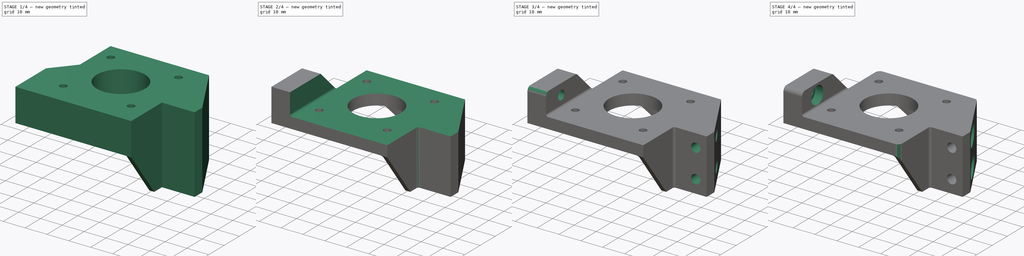
[diagram: build sequence overview — one tinted view per stage of 4, left to right]
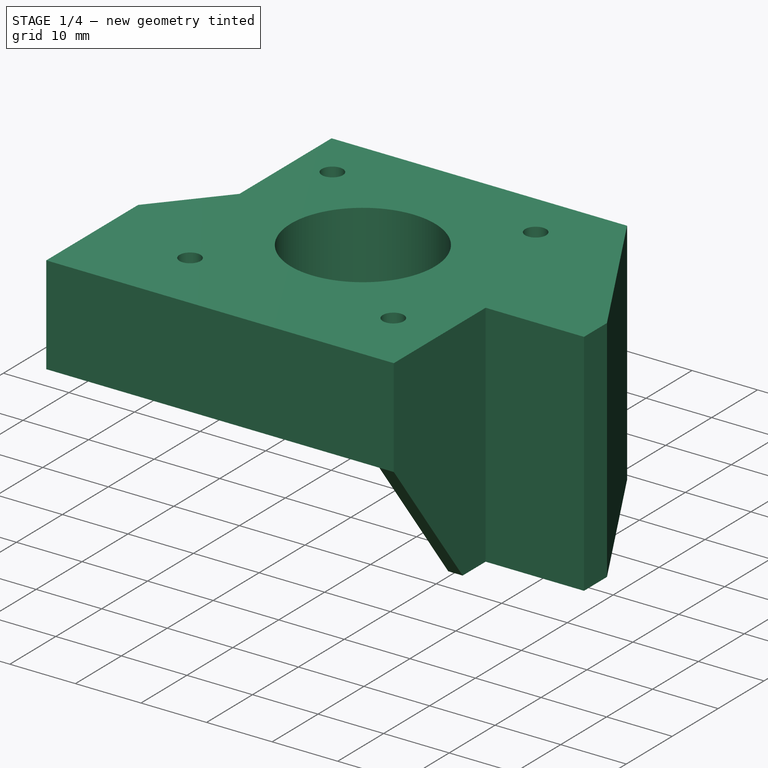
[diagram: stage 1 of 4 — iso view after this stage's code; geometry added in this stage tinted green]
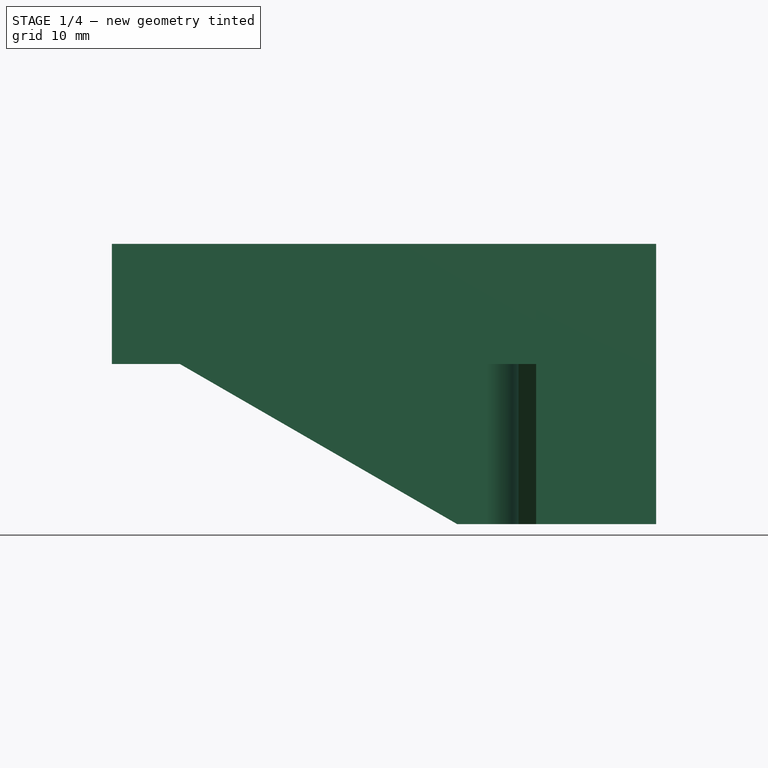
[diagram: stage 1 of 4 — front view after this stage's code; geometry added in this stage tinted green]
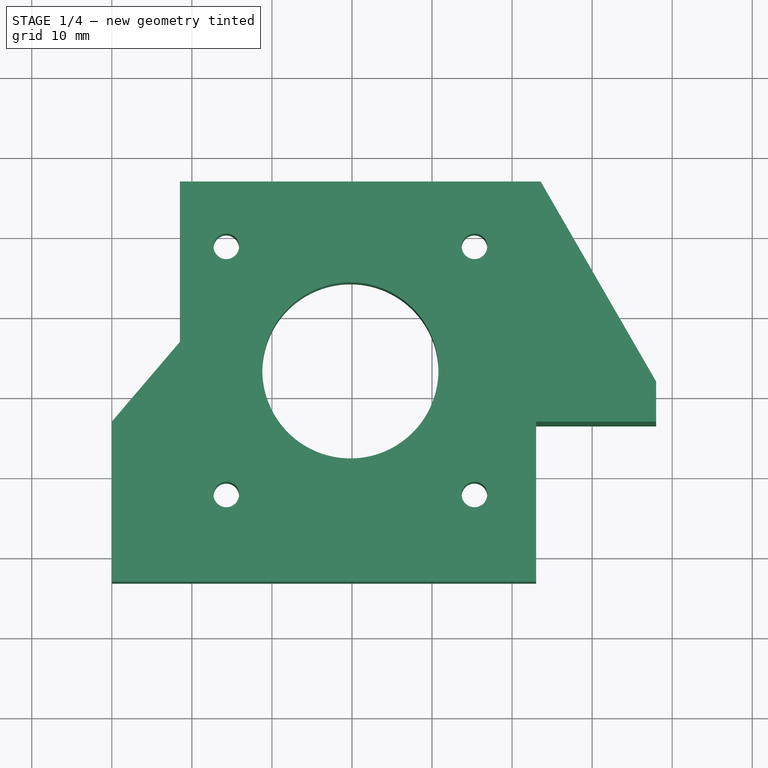
[diagram: stage 1 of 4 — top view after this stage's code; geometry added in this stage tinted green]
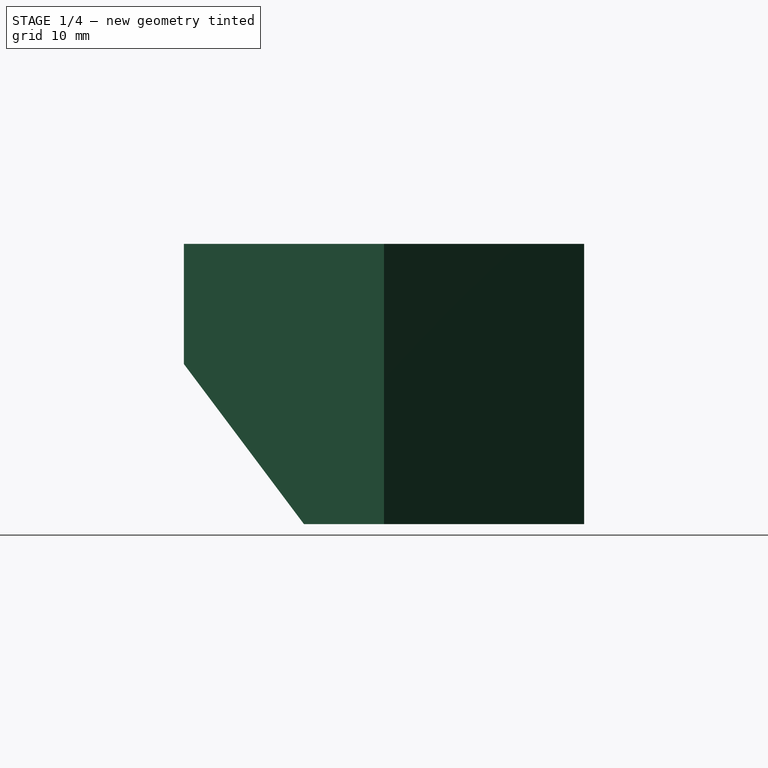
[diagram: stage 1 of 4 — right view after this stage's code; geometry added in this stage tinted green]
FCSTD DOCUMENT  (FreeCAD 0.17R5235 (Git shallow))
Label: C1030-1_motor_mount
License: CreativeCommons Attribution-ShareAlike
LicenseURL: http://creativecommons.org/licenses/by-sa/4.0/
objects: Sketcher::SketchObject×11, PartDesign::Pocket×9, PartDesign::Fillet×4, PartDesign::Pad×1, PartDesign::Body×1
note: 36 computed .brp shape members not serialized (recipe doc carries the construction recipe); baked Part::Feature solids carry a one-line shape summary decoded from their .brp

FEATURE [Sketcher::SketchObject] Sketch
  MapMode = 5
  Support = -> [XY_Plane]
  sketch-geometry (18):
    g0: Circle CenterX=-50.2 CenterY=-7.10282 CenterZ=0 NormalX=0 NormalY=0 NormalZ=1 AngleXU=0 Radius=6.35
    g1: Circle CenterX=0 CenterY=0 CenterZ=0 NormalX=0 NormalY=0 NormalZ=1 AngleXU=0 Radius=11.45
    g2: LineSegment StartX=-49.9473 StartY=-13.4478 StartZ=0 EndX=0.455582 EndY=-11.4409 EndZ=0
    g3: LineSegment [constr] StartX=-50.2 StartY=-7.10282 StartZ=0 EndX=0 EndY=0 EndZ=0
    g4: LineSegment StartX=-27 StartY=-13.5 StartZ=0 EndX=-7 EndY=-13.5 EndZ=0
    g5: LineSegment StartX=-7 StartY=-13.5 StartZ=0 EndX=-7 EndY=-33.5 EndZ=0
    g6: LineSegment StartX=-7 StartY=-33.5 StartZ=0 EndX=-27 EndY=-33.5 EndZ=0
    g7: LineSegment StartX=-27 StartY=-33.5 StartZ=0 EndX=-27 EndY=-13.5 EndZ=0
    g8: LineSegment StartX=-51.7175 StartY=-0.936811 StartZ=0 EndX=-2.73632 EndY=11.1182 EndZ=0
    g9: LineSegment StartX=-29.2 StartY=13.8972 StartZ=0 EndX=-71.2 EndY=13.8972 EndZ=0
    g10: LineSegment StartX=-71.2 StartY=13.8972 StartZ=0 EndX=-71.2 EndY=-28.1028 EndZ=0
    g11: LineSegment StartX=-71.2 StartY=-28.1028 StartZ=0 EndX=-29.2 EndY=-28.1028 EndZ=0
    g12: LineSegment StartX=-29.2 StartY=-28.1028 StartZ=0 EndX=-29.2 EndY=13.8972 EndZ=0
    g13: Circle [constr] CenterX=-50.2 CenterY=-7.10282 CenterZ=0 NormalX=0 NormalY=0 NormalZ=1 AngleXU=0 Radius=29.6985
    g14: LineSegment StartX=-80 StartY=-33.5 StartZ=0 EndX=-100 EndY=-33.5 EndZ=0
    g15: LineSegment StartX=-100 StartY=-33.5 StartZ=0 EndX=-100 EndY=-13.5 EndZ=0
    g16: LineSegment StartX=-100 StartY=-13.5 StartZ=0 EndX=-80 EndY=-13.5 EndZ=0
    g17: LineSegment StartX=-80 StartY=-13.5 StartZ=0 EndX=-80 EndY=-33.5 EndZ=0
  constraints (55):
    c: PointOnObject(g2,g0)
    c: Tangent(g2,g1)
    c: Tangent(g0,g2)
    c: PointOnObject(g2,g1)
    c: Radius(g0) = 6.35
    c: Radius(g1) = 11.45
    c: Coincident(g3,g1)
    c: Distance(g3) = 50.7
    c: Coincident(g4,g5)
    c: Coincident(g5,g6)
    c: Coincident(g6,g7)
    c: Coincident(g7,g4)
    c: Horizontal(g4)
    c: Horizontal(g6)
    c: Vertical(g5)
    c: Vertical(g7)
    c: Equal(g6,g5)
    c: DistanceX(g6,g6) = 20
    c: DistanceX(g4,g1) = 7
    c: DistanceY(g4,g1) = 13.5
    c: Coincident(g3,g0)
    c: PointOnObject(g8,g0)
    c: PointOnObject(g8,g1)
    c: Tangent(g8,g0)
    c: Tangent(g1,g8)
    c: Coincident(g1,g-1)
    c: Coincident(g9,g10)
    c: Coincident(g10,g11)
    c: Coincident(g11,g12)
    c: Coincident(g12,g9)
    c: Equal(g9,g10)
    c: Equal(g9,g11)
    c: Equal(g9,g12)
    c: PointOnObject(g9,g13)
    c: PointOnObject(g10,g13)
    c: PointOnObject(g11,g13)
    c: PointOnObject(g12,g13)
    c: Coincident(g13,g0)
    c: Horizontal(g9)
    c: DistanceY(g10,g10) = 42
    c: DistanceX(g11,g6) = 2.2
    c: DistanceX(g10,g6) = 44.2
    c: DistanceY(g6,g9) = 47.3972
    c: Coincident(g14,g15)
    c: Coincident(g15,g16)
    c: Coincident(g16,g17)
    c: Coincident(g17,g14)
    c: Horizontal(g14)
    c: Horizontal(g16)
    c: Vertical(g15)
    c: Vertical(g17)
    c: Equal(g17,g14)
    c: Equal(g17,g5)
    c: PointOnObject(g14,g6)
    c: DistanceX(g14,g6) = 53
FEATURE [Sketcher::SketchObject] Sketch001
  ExternalGeometry = -> [Sketch]
  MapMode = 5
  Support = -> [XY_Plane]
  sketch-geometry (19):
    g0: LineSegment StartX=-27 StartY=-33.5 StartZ=0 EndX=-27 EndY=-13.5 EndZ=0
    g1: LineSegment StartX=-27 StartY=-13.5 StartZ=0 EndX=-12 EndY=-13.5 EndZ=0
    g2: LineSegment StartX=-26.4338 StartY=16.5 StartZ=0 EndX=-71.5 EndY=16.5 EndZ=0
    g3: LineSegment StartX=-80 StartY=-33.5 StartZ=0 EndX=-27 EndY=-33.5 EndZ=0
    g4: LineSegment StartX=-12 StartY=-13.5 StartZ=0 EndX=-12 EndY=-8.5 EndZ=0
    g5: LineSegment StartX=-12 StartY=-8.5 StartZ=0 EndX=-26.4338 EndY=16.5 EndZ=0
    g6: LineSegment StartX=-71.5 StartY=16.5 StartZ=0 EndX=-71.5 EndY=-3.54778 EndZ=0
    g7: LineSegment StartX=-80 StartY=-13.5 StartZ=0 EndX=-80 EndY=-33.5 EndZ=0
    g8: Circle CenterX=-50.2 CenterY=-7.10282 CenterZ=0 NormalX=0 NormalY=0 NormalZ=1 AngleXU=0 Radius=11
    g9: Circle CenterX=-34.7 CenterY=8.39718 CenterZ=0 NormalX=0 NormalY=0 NormalZ=1 AngleXU=0 Radius=1.6
    g10: Circle CenterX=-34.7 CenterY=-22.6028 CenterZ=0 NormalX=0 NormalY=0 NormalZ=1 AngleXU=0 Radius=1.6
    g11: Circle CenterX=-65.7 CenterY=-22.6028 CenterZ=0 NormalX=0 NormalY=0 NormalZ=1 AngleXU=0 Radius=1.6
    g12: Circle CenterX=-65.7 CenterY=8.39718 CenterZ=0 NormalX=0 NormalY=0 NormalZ=1 AngleXU=0 Radius=1.6
    g13: LineSegment [constr] StartX=-34.7 StartY=8.39718 StartZ=0 EndX=-65.7 EndY=8.39718 EndZ=0
    g14: LineSegment [constr] StartX=-65.7 StartY=8.39718 StartZ=0 EndX=-65.7 EndY=-22.6028 EndZ=0
    g15: LineSegment [constr] StartX=-65.7 StartY=-22.6028 StartZ=0 EndX=-34.7 EndY=-22.6028 EndZ=0
    g16: LineSegment [constr] StartX=-34.7 StartY=-22.6028 StartZ=0 EndX=-34.7 EndY=8.39718 EndZ=0
    g17: Circle [constr] CenterX=-50.2 CenterY=-7.10282 CenterZ=0 NormalX=0 NormalY=0 NormalZ=1 AngleXU=0 Radius=21.9203
    g18: LineSegment StartX=-80 StartY=-13.5 StartZ=0 EndX=-71.5 EndY=-3.54778 EndZ=0
  constraints (48):
    c: Coincident(g0,g1)
    c: Horizontal(g1)
    c: Horizontal(g2)
    c: Coincident(g3,g0)
    c: Horizontal(g3)
    c: Coincident(g0,g-3)
    c: Coincident(g0,g-4)
    c: DistanceY(g0,g2) = 50
    c: Coincident(g1,g4)
    c: Vertical(g4)
    c: Coincident(g4,g5)
    c: Coincident(g5,g2)
    c: Angle(g2,g5) = 2.0944
    c: DistanceY(g4,g2) = 25
    c: DistanceX(g1,g1) = 15
    c: Coincident(g2,g6)
    c: Vertical(g6)
    c: Vertical(g7)
    c: Coincident(g3,g7)
    c: Coincident(g8,g-5)
    c: Radius(g8) = 11
    c: Equal(g12,g9)
    c: Equal(g9,g11)
    c: Equal(g11,g10)
    c: Radius(g10) = 1.6
    c: Coincident(g13,g14)
    c: Coincident(g14,g15)
    c: Coincident(g15,g16)
    c: Coincident(g16,g13)
    c: Equal(g13,g14)
    c: Equal(g13,g15)
    c: Equal(g13,g16)
    c: PointOnObject(g13,g17)
    c: PointOnObject(g14,g17)
    c: PointOnObject(g15,g17)
    c: PointOnObject(g16,g17)
    c: Coincident(g17,g8)
    c: Horizontal(g13)
    c: DistanceY(g14,g14) = 31
    c: Coincident(g9,g13)
    c: Coincident(g12,g13)
    c: Coincident(g11,g14)
    c: Coincident(g10,g15)
    c: DistanceX(g6,g0) = 44.5
    c: Coincident(g18,g6)
    c: Coincident(g18,g7)
    c: Coincident(g7,g-6)
    c: Angle(g6,g18) = 2.43473
FEATURE [PartDesign::Pad] Pad
  Length = 15
  Length2 = 20
  Profile = -> Sketch001
  Type = 4
FEATURE [Sketcher::SketchObject] Sketch002
  ExternalGeometry = -> [Sketch,Pad]
  MapMode = 5
  Support = -> [XY_Plane]
  sketch-geometry (5):
    g0: LineSegment StartX=-29.2 StartY=9.89718 StartZ=0 EndX=-29.2 EndY=-33.5 EndZ=0
    g1: LineSegment StartX=-33.2 StartY=13.8972 StartZ=0 EndX=-80 EndY=13.8972 EndZ=0
    g2: ArcOfCircle CenterX=-33.2 CenterY=9.89718 CenterZ=0 NormalX=0 NormalY=0 NormalZ=1 AngleXU=0 Radius=4 StartAngle=0 EndAngle=1.5708
    g3: LineSegment StartX=-80 StartY=13.8972 StartZ=0 EndX=-80 EndY=-33.5 EndZ=0
    g4: LineSegment StartX=-80 StartY=-33.5 StartZ=0 EndX=-29.2 EndY=-33.5 EndZ=0
  constraints (13):
    c: Vertical(g0)
    c: PointOnObject(g0,g-5)
    c: PointOnObject(g1,g-6)
    c: Horizontal(g1)
    c: Tangent(g2,g0) = 1.5708
    c: Tangent(g2,g1) = -1.5708
    c: Radius(g2) = 4
    c: Coincident(g1,g3)
    c: Coincident(g3,g-7)
    c: Vertical(g3)
    c: Coincident(g3,g4)
    c: Coincident(g4,g0)
    c: Horizontal(g4)
FEATURE [PartDesign::Pocket] Pocket
  BaseFeature = -> Pad
  Length = 20
  Length2 = 100
  Profile = -> Sketch002
  Type = 0
FEATURE [Sketcher::SketchObject] Sketch003
  ExternalGeometry = -> [Pocket]
  MapMode = 5
  Placement = pos=(0,0,0) rot=(1,0,0;1.5708rad)
  Support = -> [XZ_Plane]
  sketch-geometry (3):
    g0: LineSegment StartX=-36.859 StartY=-20 StartZ=0 EndX=-71.5 EndY=-20 EndZ=0
    g1: LineSegment StartX=-71.5 StartY=-20 StartZ=0 EndX=-71.5 EndY=0 EndZ=0
    g2: LineSegment StartX=-71.5 StartY=0 StartZ=0 EndX=-36.859 EndY=-20 EndZ=0
  constraints (7):
    c: PointOnObject(g0,g-3)
    c: Coincident(g0,g-4)
    c: Coincident(g0,g1)
    c: Coincident(g1,g-4)
    c: Coincident(g1,g2)
    c: Coincident(g2,g0)
    c: Angle(g2,g0) = 0.523599
FEATURE [PartDesign::Pocket] Pocket001
  BaseFeature = -> Pocket
  Length = 5
  Length2 = 100
  Profile = -> Sketch003
  Type = 1
FEATURE [Sketcher::SketchObject] Sketch004
  ExternalGeometry = -> [Pocket001]
  MapMode = 5
  Placement = pos=(0,0,0) rot=(0.57735,0.57735,0.57735;2.0944rad)
  Support = -> [YZ_Plane]
  sketch-geometry (3):
    g0: LineSegment StartX=-18.5 StartY=-20 StartZ=0 EndX=-33.5 EndY=-20 EndZ=0
    g1: LineSegment StartX=-33.5 StartY=-20 StartZ=0 EndX=-33.5 EndY=0 EndZ=0
    g2: LineSegment StartX=-33.5 StartY=0 StartZ=0 EndX=-18.5 EndY=-20 EndZ=0
  constraints (8):
    c: Coincident(g0,g-4)
    c: Coincident(g0,g1)
    c: PointOnObject(g1,g-4)
    c: Coincident(g1,g2)
    c: PointOnObject(g1,g-1)
    c: Coincident(g2,g0)
    c: PointOnObject(g0,g-3)
    c: DistanceX(g0,g-3) = 5
FEATURE [PartDesign::Pocket] Pocket002
  BaseFeature = -> Pocket001
  Length = 5
  Length2 = 100
  Profile = -> Sketch004
  Type = 1
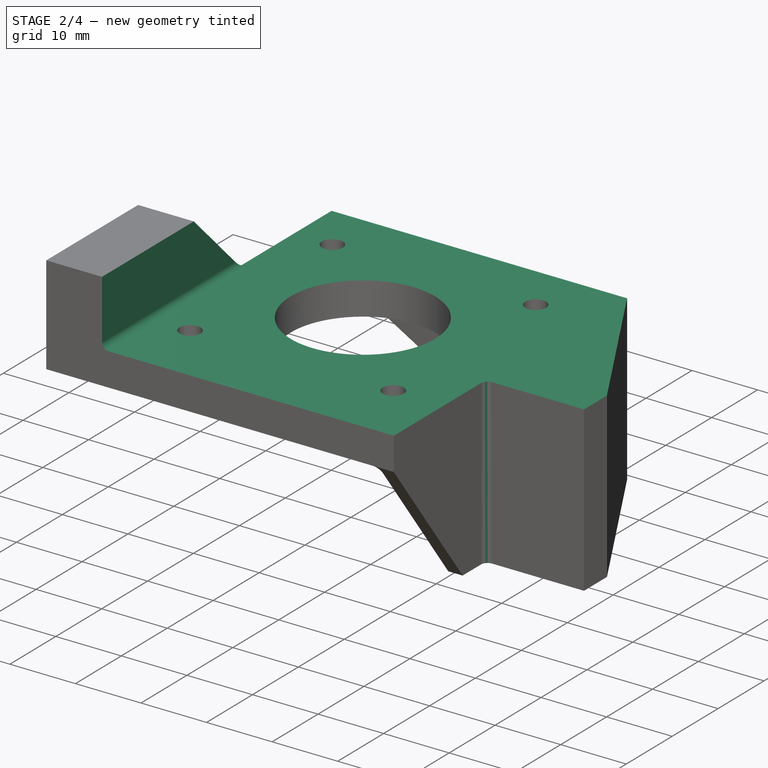
[diagram: stage 2 of 4 — iso view after this stage's code; geometry added in this stage tinted green]
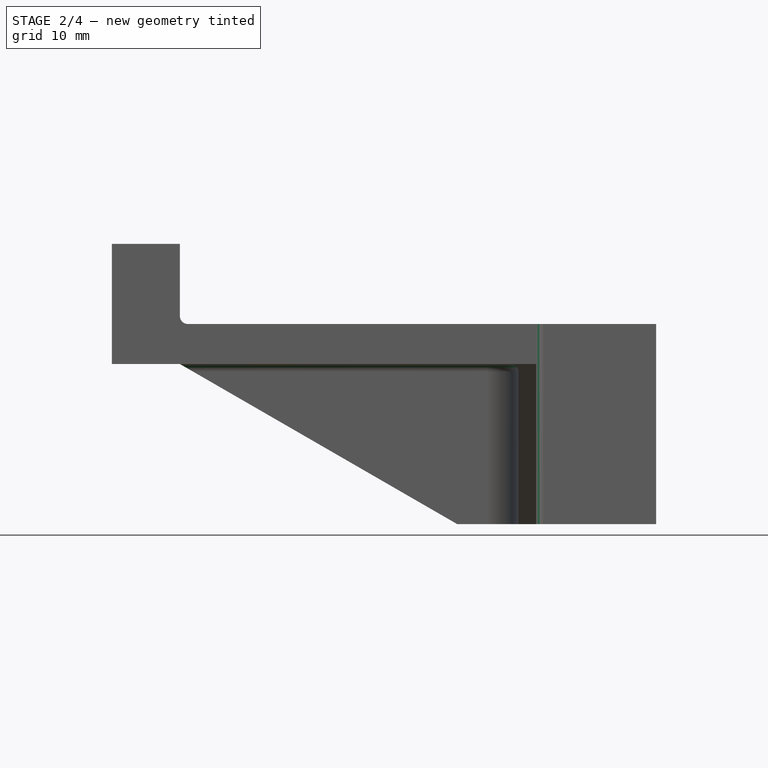
[diagram: stage 2 of 4 — front view after this stage's code; geometry added in this stage tinted green]
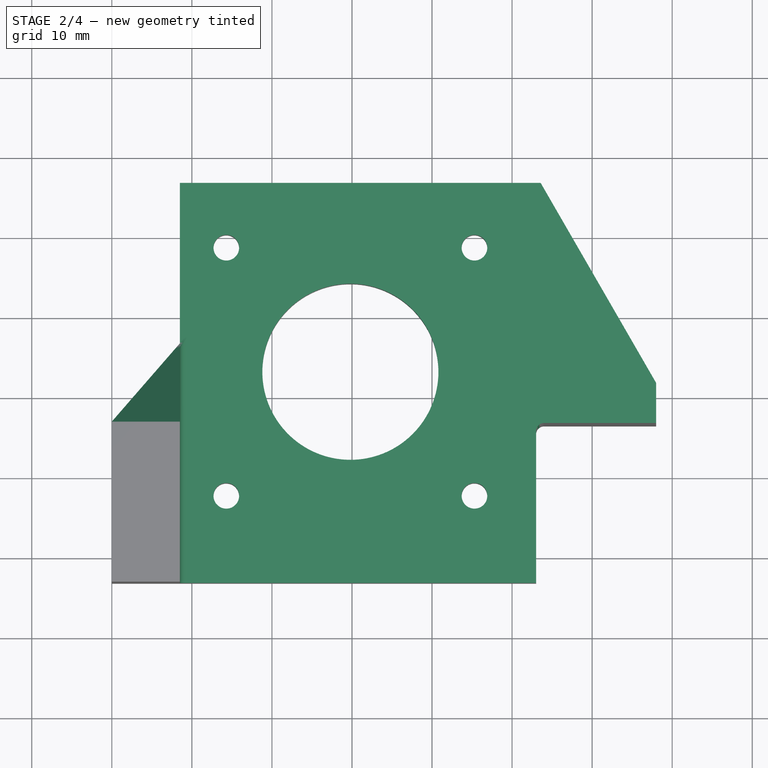
[diagram: stage 2 of 4 — top view after this stage's code; geometry added in this stage tinted green]
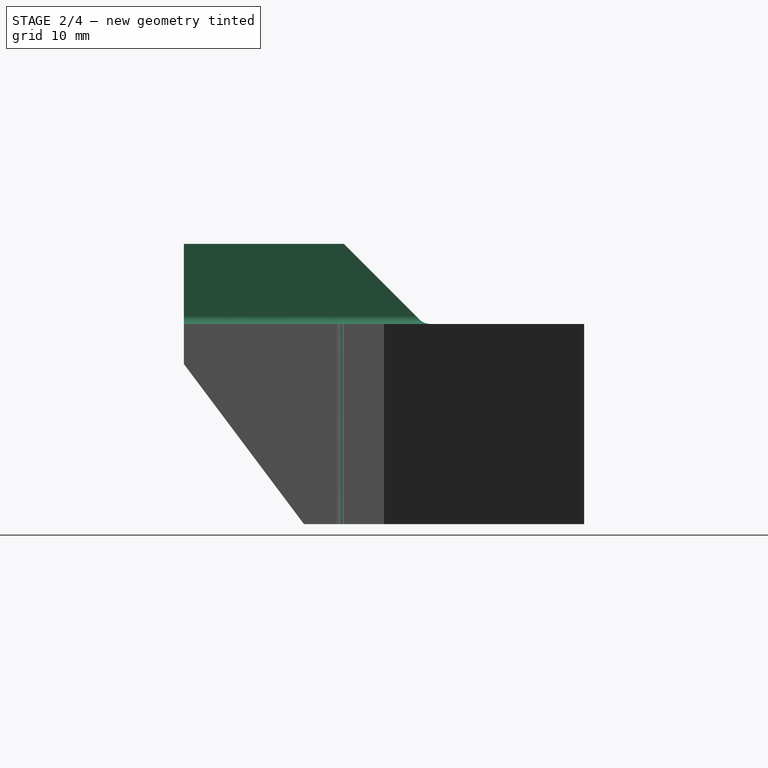
[diagram: stage 2 of 4 — right view after this stage's code; geometry added in this stage tinted green]
FEATURE [Sketcher::SketchObject] Sketch005
  ExternalGeometry = -> [Pocket002]
  MapMode = 5
  Placement = pos=(0,0,0) rot=(1,0,0;1.5708rad)
  Support = -> [XZ_Plane]
  sketch-geometry (4):
    g0: LineSegment StartX=0 StartY=5 StartZ=0 EndX=-71.5 EndY=5 EndZ=0
    g1: LineSegment StartX=0 StartY=5 StartZ=0 EndX=0 EndY=33 EndZ=0
    g2: LineSegment StartX=0 StartY=33 StartZ=0 EndX=-71.5 EndY=33 EndZ=0
    g3: LineSegment StartX=-71.5 StartY=33 StartZ=0 EndX=-71.5 EndY=5 EndZ=0
  constraints (12):
    c: Horizontal(g0)
    c: DistanceY(g-1,g0) = 5
    c: Vertical(g1)
    c: Coincident(g1,g2)
    c: Coincident(g2,g3)
    c: Coincident(g3,g0)
    c: Vertical(g3)
    c: Horizontal(g2)
    c: Coincident(g1,g0)
    c: PointOnObject(g-4,g3)
    c: PointOnObject(g1,g-2)
    c: DistanceY(g0,g1) = 28
FEATURE [PartDesign::Pocket] Pocket003
  BaseFeature = -> Pocket002
  Length = 5
  Length2 = 100
  Midplane = true
  Profile = -> Sketch005
  Type = 1
FEATURE [PartDesign::Fillet] Fillet
  Base = -> Pocket003 [Edge51,Edge7,Edge49]
  BaseFeature = -> Pocket003
  Radius = 1
FEATURE [Sketcher::SketchObject] Sketch006
  ExternalGeometry = -> [Fillet]
  MapMode = 5
  Placement = pos=(0,0,0) rot=(0.57735,0.57735,0.57735;2.0944rad)
  Support = -> [YZ_Plane]
  sketch-geometry (5):
    g0: LineSegment StartX=-13.5 StartY=15 StartZ=0 EndX=-4.08579 EndY=5.58579 EndZ=0
    g1: LineSegment StartX=16.5 StartY=5 StartZ=0 EndX=16.5 EndY=15 EndZ=0
    g2: LineSegment StartX=16.5 StartY=15 StartZ=0 EndX=-13.5 EndY=15 EndZ=0
    g3: LineSegment StartX=-2.67157 StartY=5 StartZ=0 EndX=16.5 EndY=5 EndZ=0
    g4: ArcOfCircle CenterX=-2.67157 CenterY=7 CenterZ=0 NormalX=0 NormalY=0 NormalZ=1 AngleXU=0 Radius=2 StartAngle=3.92699 EndAngle=4.71239
  constraints (13):
    c: Coincident(g-3,g0)
    c: Vertical(g1)
    c: Coincident(g1,g2)
    c: Coincident(g2,g0)
    c: Horizontal(g2)
    c: Coincident(g3,g1)
    c: Horizontal(g3)
    c: Angle(g0,g2) = 0.785398
    c: Tangent(g0,g4) = -1.5708
    c: Tangent(g3,g4) = -1.5708
    c: Radius(g4) = 2
    c: PointOnObject(g1,g-4)
    c: DistanceX(g2,g2) = 30
FEATURE [PartDesign::Pocket] Pocket004
  BaseFeature = -> Fillet
  Length = 5
  Length2 = 100
  Profile = -> Sketch006
  Type = 1
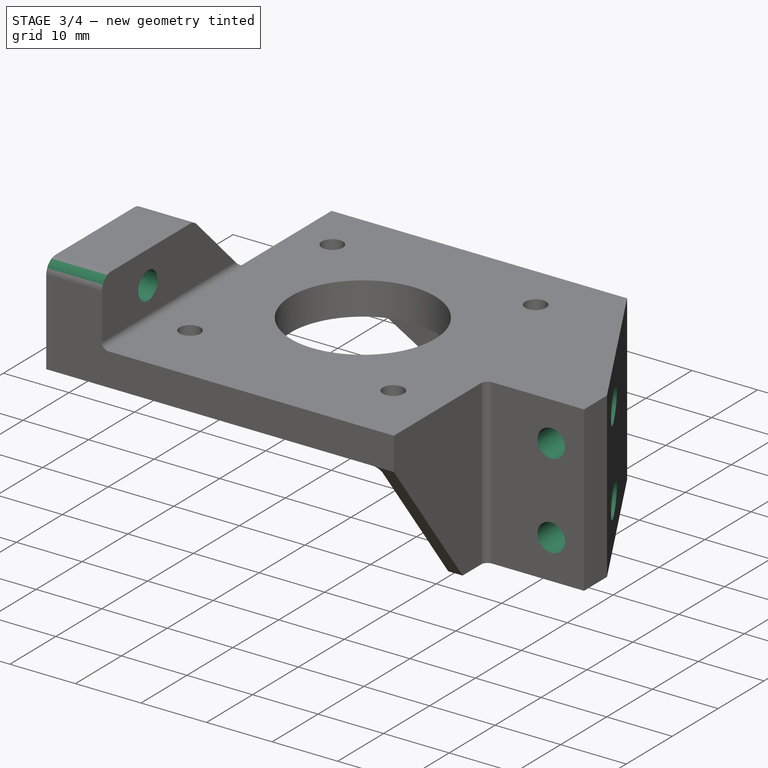
[diagram: stage 3 of 4 — iso view after this stage's code; geometry added in this stage tinted green]
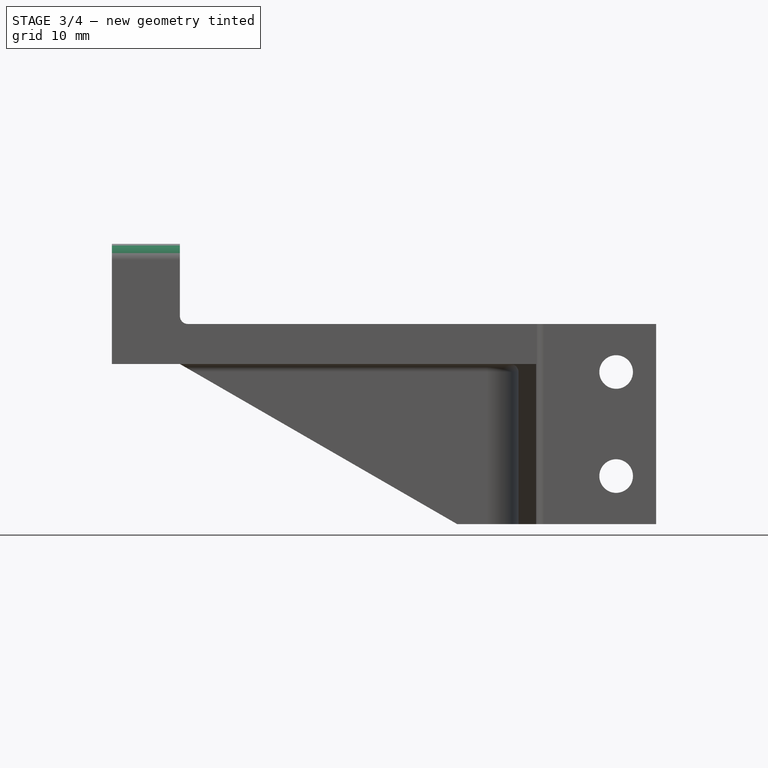
[diagram: stage 3 of 4 — front view after this stage's code; geometry added in this stage tinted green]
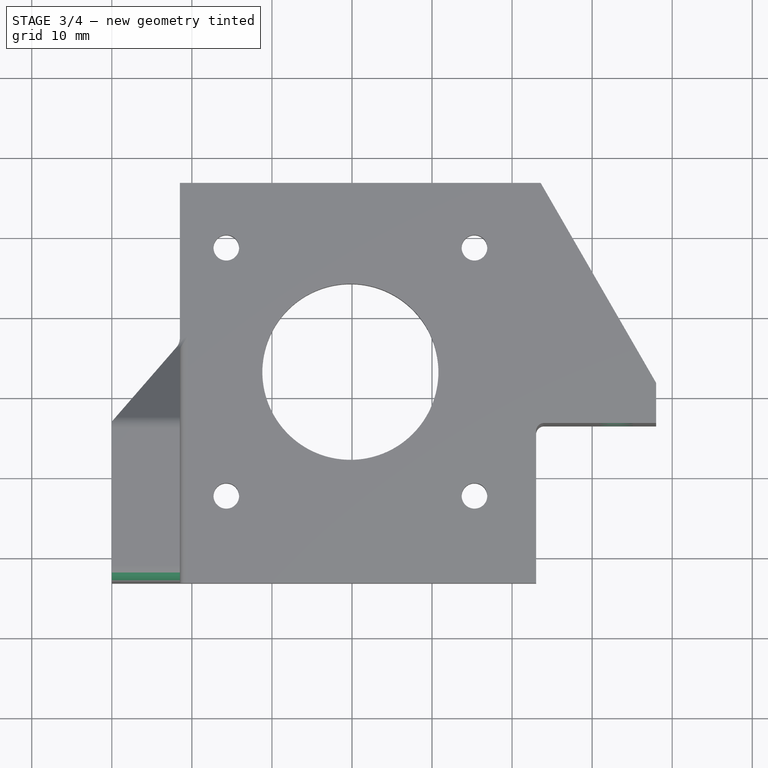
[diagram: stage 3 of 4 — top view after this stage's code; geometry added in this stage tinted green]
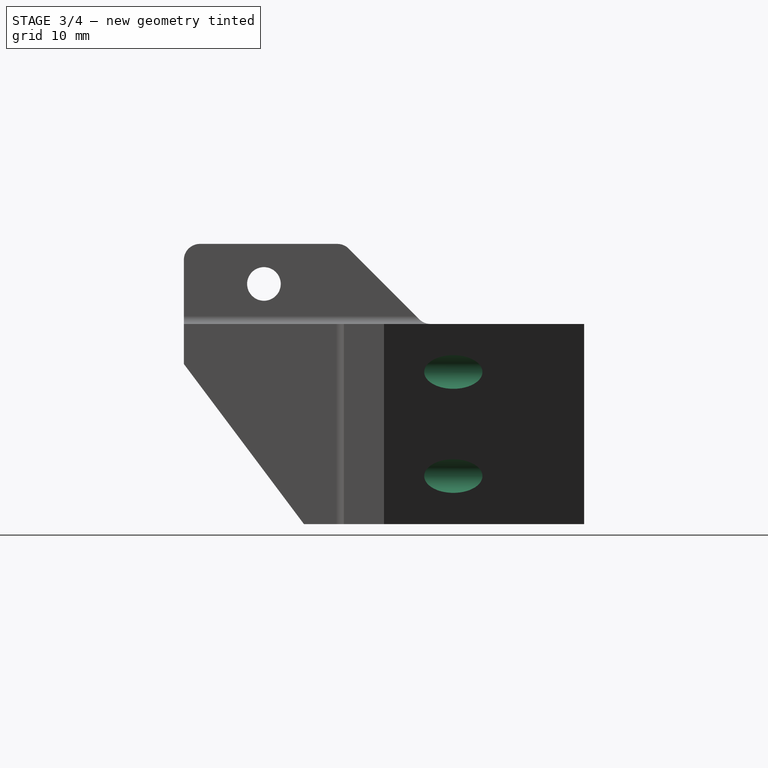
[diagram: stage 3 of 4 — right view after this stage's code; geometry added in this stage tinted green]
FEATURE [PartDesign::Fillet] Fillet001
  Base = -> Pocket004 [Edge29,Edge58,Edge17,Edge55]
  BaseFeature = -> Pocket004
  Radius = 2
FEATURE [Sketcher::SketchObject] Sketch007
  ExternalGeometry = -> [Fillet]
  MapMode = 5
  Placement = pos=(0,0,0) rot=(1,0,0;1.5708rad)
  Support = -> [XZ_Plane]
  sketch-geometry (2):
    g0: Circle CenterX=-17 CenterY=-1 CenterZ=0 NormalX=0 NormalY=0 NormalZ=1 AngleXU=0 Radius=2.1
    g1: Circle CenterX=-17 CenterY=-14 CenterZ=0 NormalX=0 NormalY=0 NormalZ=1 AngleXU=0 Radius=2.1
  constraints (6):
    c: Equal(g0,g1)
    c: Radius(g0) = 2.1
    c: DistanceY(g1,g0) = 13
    c: Vertical(g1,g0)
    c: DistanceX(g-3,g1) = 10
    c: DistanceY(g0,g-3) = 6
FEATURE [PartDesign::Pocket] Pocket005
  BaseFeature = -> Fillet001
  Length = 5
  Length2 = 100
  Midplane = true
  Profile = -> Sketch007
  Type = 1
FEATURE [Sketcher::SketchObject] Sketch008
  ExternalGeometry = -> [Sketch]
  MapMode = 5
  Placement = pos=(0,0,0) rot=(0.57735,0.57735,0.57735;2.0944rad)
  Support = -> [YZ_Plane]
  sketch-geometry (2):
    g0: Circle CenterX=-23.5 CenterY=10 CenterZ=0 NormalX=0 NormalY=0 NormalZ=1 AngleXU=0 Radius=2.1
    g1: LineSegment [constr] StartX=-23.5 StartY=10 StartZ=0 EndX=-23.5 EndY=9e-12 EndZ=0
  constraints (6):
    c: Radius(g0) = 2.1
    c: Coincident(g1,g0)
    c: PointOnObject(g1,g-3)
    c: Vertical(g1)
    c: Symmetric(g-3,g-3,g1)
    c: DistanceY(g1,g1) = 10
FEATURE [PartDesign::Pocket] Pocket006
  BaseFeature = -> Pocket005
  Length = 5
  Length2 = 100
  Profile = -> Sketch008
  Type = 1
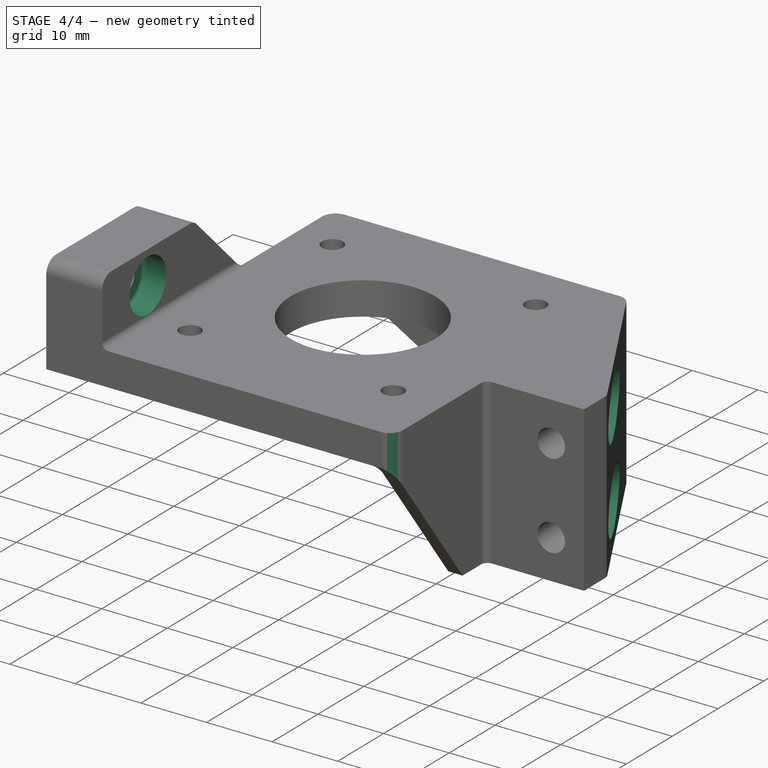
[diagram: stage 4 of 4 — iso view after this stage's code; geometry added in this stage tinted green]
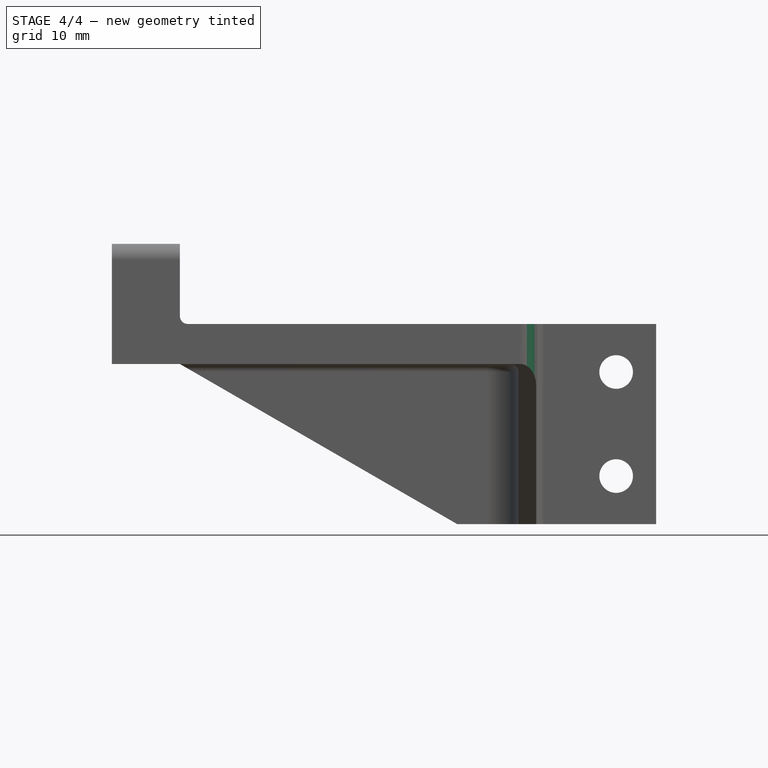
[diagram: stage 4 of 4 — front view after this stage's code; geometry added in this stage tinted green]
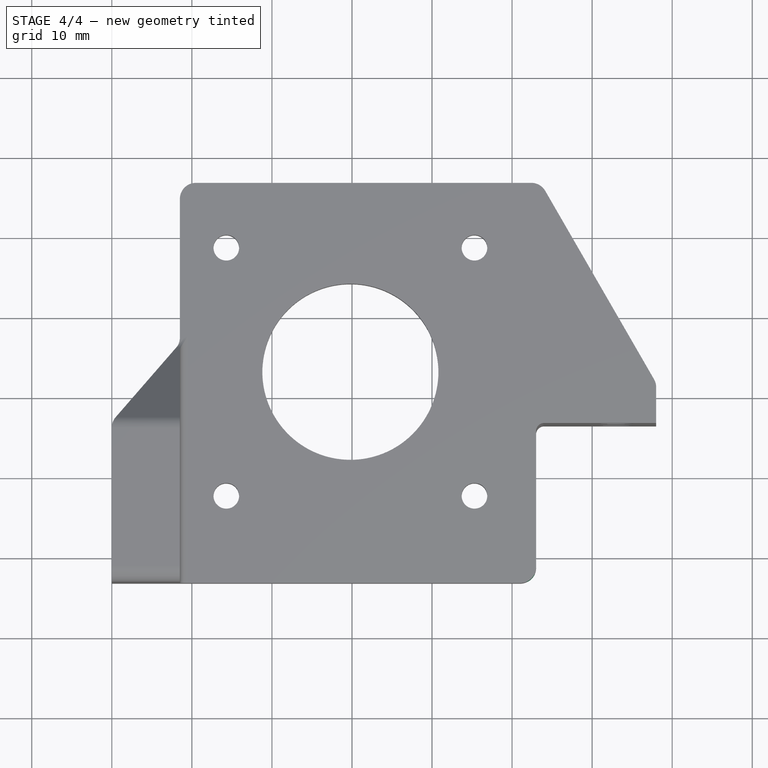
[diagram: stage 4 of 4 — top view after this stage's code; geometry added in this stage tinted green]
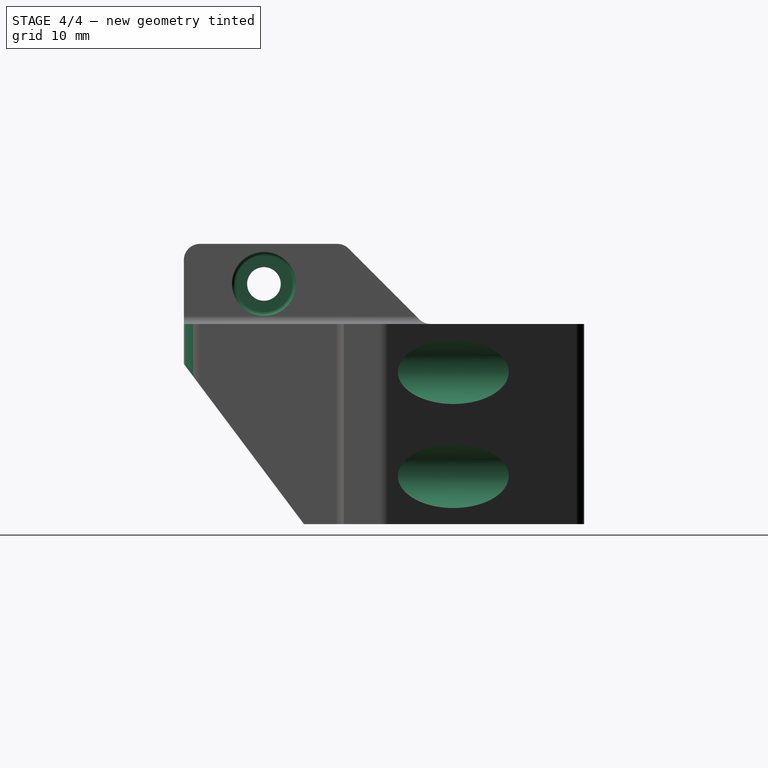
[diagram: stage 4 of 4 — right view after this stage's code; geometry added in this stage tinted green]
FEATURE [Sketcher::SketchObject] Sketch009
  ExternalGeometry = -> [Pocket006]
  MapMode = 5
  Placement = pos=(0,0,0) rot=(1,0,0;1.5708rad)
  Support = -> [XZ_Plane]
  sketch-geometry (2):
    g0: Circle CenterX=-17 CenterY=-1 CenterZ=0 NormalX=0 NormalY=0 NormalZ=1 AngleXU=0 Radius=4
    g1: Circle CenterX=-17 CenterY=-14 CenterZ=0 NormalX=0 NormalY=0 NormalZ=1 AngleXU=0 Radius=4
  constraints (4):
    c: Coincident(g0,g-3)
    c: Coincident(g1,g-4)
    c: Equal(g0,g1)
    c: Radius(g0) = 4
FEATURE [PartDesign::Pocket] Pocket007
  BaseFeature = -> Pocket006
  Length = 17
  Length2 = 100
  Midplane = true
  Profile = -> Sketch009
  Type = 0
FEATURE [Sketcher::SketchObject] Sketch010
  ExternalGeometry = -> [Pocket007]
  MapMode = 5
  Placement = pos=(-71.5,0,0) rot=(0.57735,0.57735,0.57735;2.0944rad)
  Support = -> [Pocket007]
  sketch-geometry (1):
    g0: Circle CenterX=-23.5 CenterY=10 CenterZ=0 NormalX=0 NormalY=0 NormalZ=1 AngleXU=0 Radius=4
  constraints (2):
    c: Coincident(g0,g-3)
    c: Radius(g0) = 4
FEATURE [PartDesign::Pocket] Pocket008
  BaseFeature = -> Pocket007
  Length = 3.5
  Length2 = 100
  Profile = -> Sketch010
  Type = 0
FEATURE [PartDesign::Fillet] Fillet002
  Base = -> Pocket008 [Edge105,Edge120,Edge118]
  BaseFeature = -> Pocket008
  Radius = 0.5
FEATURE [PartDesign::Fillet] Fillet003
  Base = -> Fillet002 [Edge110,Edge111,Edge78,Edge29,Edge14]
  BaseFeature = -> Fillet002
  Radius = 2
FEATURE [PartDesign::Body] Body
  Group = -> [Sketch,Sketch001,Pad,Sketch002,Pocket,Sketch003,Pocket001,Sketch004,Pocket002,Sketch005,Pocket003,Fillet,Sketch006,Pocket004,Fillet001,Sketch007,Pocket005,Sketch008,Pocket006,Sketch009,Pocket007,Sketch010,Pocket008,Fillet002,Fillet003]
  Origin = -> Origin
  Tip = -> Fillet003
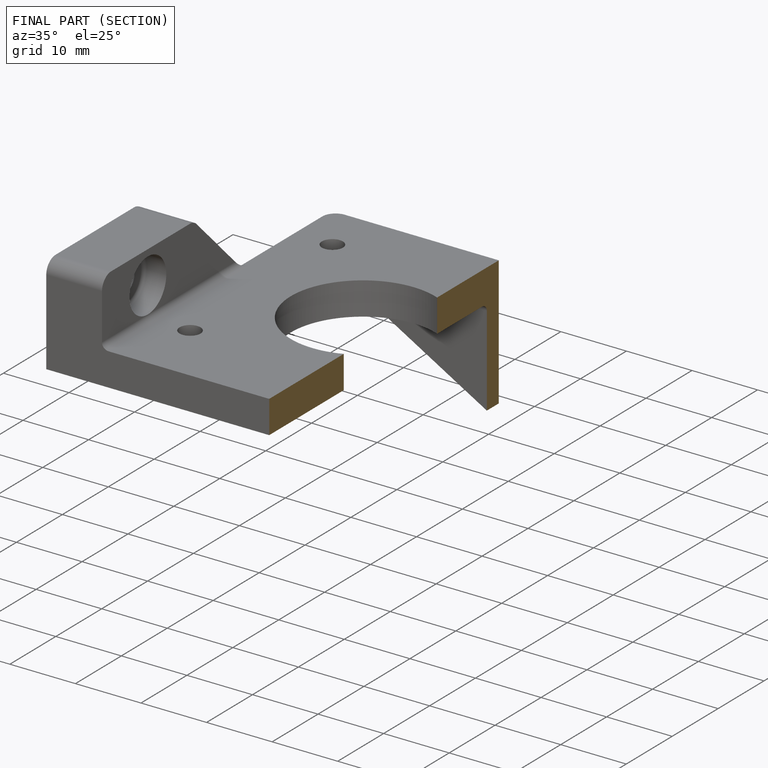
[diagram: finished part — half-section view (interior)]
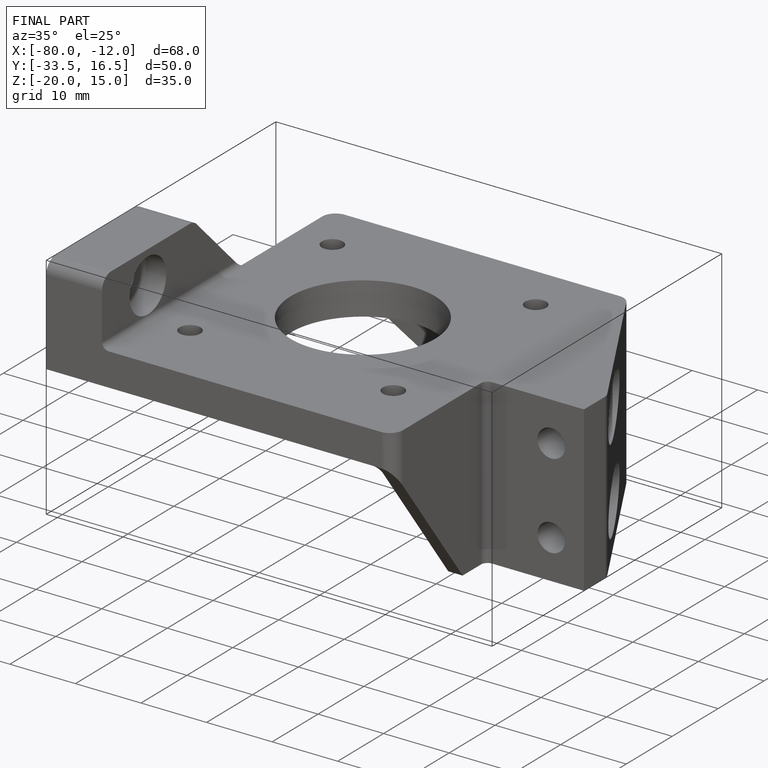
[diagram: finished part — iso view with bounding-box wireframe]
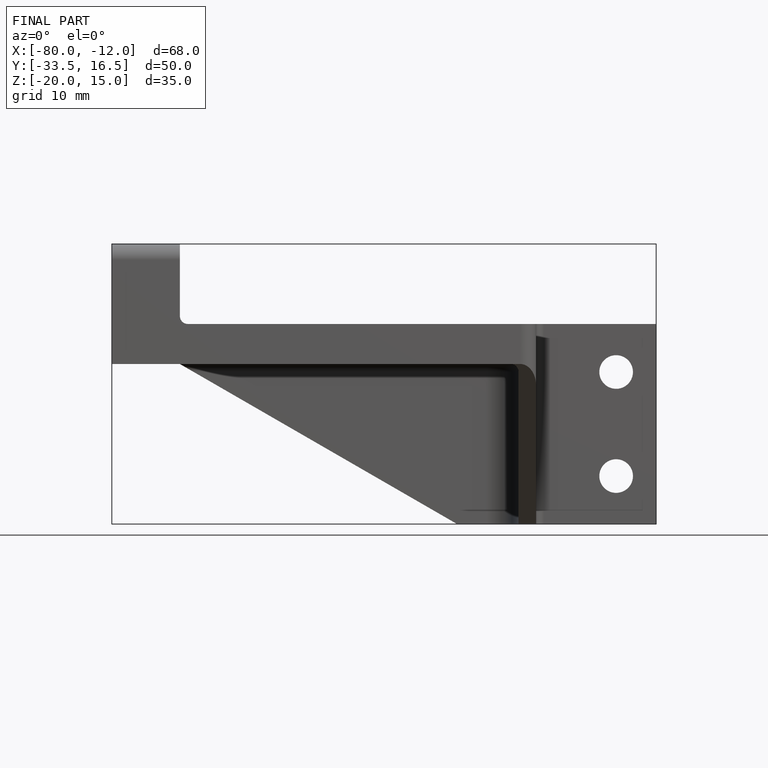
[diagram: finished part — front view with bounding-box wireframe]
